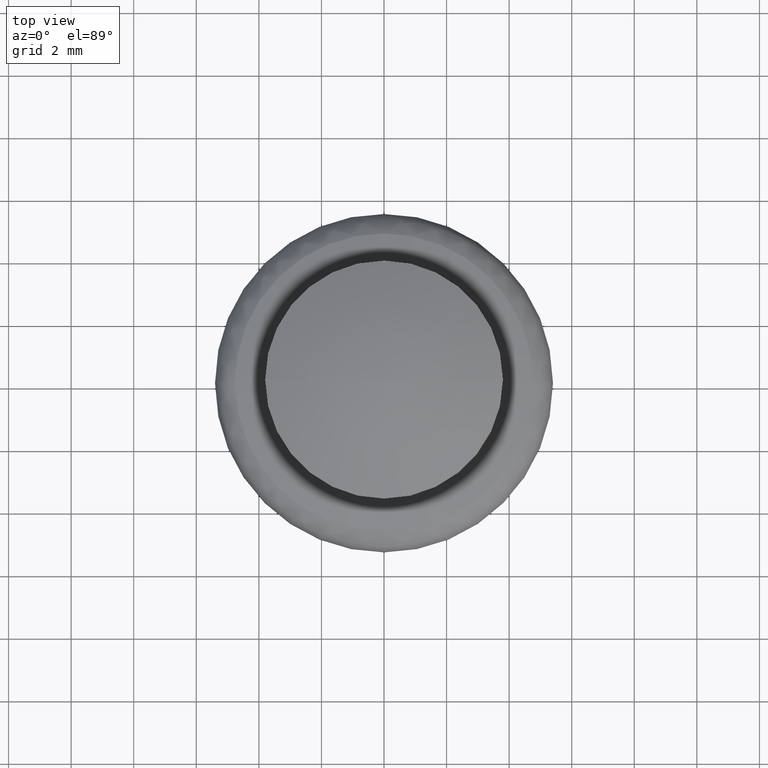
[diagram: clean part render]
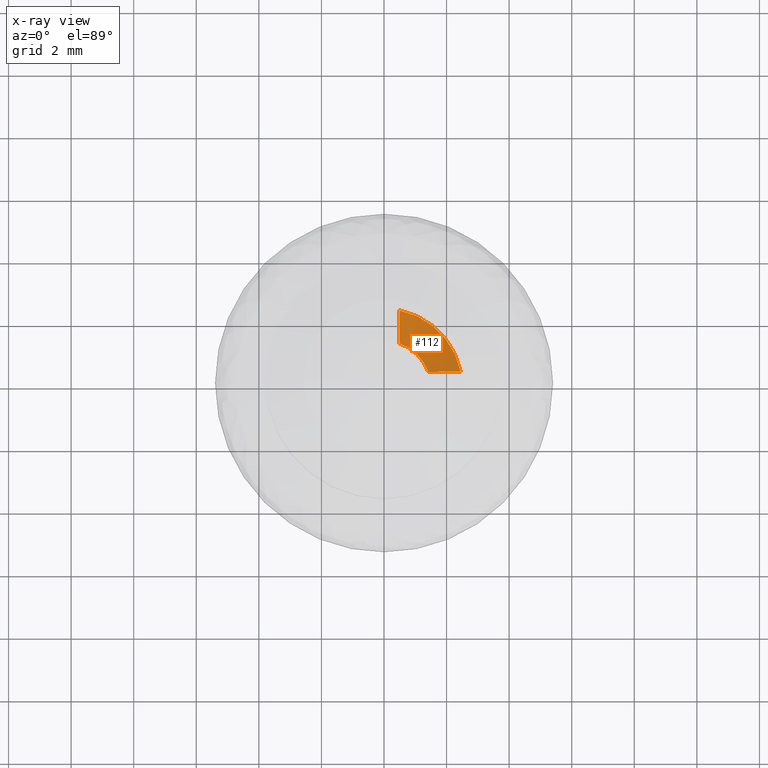
[diagram: x-ray — body ghosted, one internal face saturated and labeled with its STEP entity id]
A machine part, top view, then the same camera in x-ray: the body is ghosted and one INTERNAL B-rep face — a face not visible from any outside direction — is saturated and labeled: STEP entity #112.
In plain terms, the highlighted face is a freeform B-spline surface patch.
Its self-contained STEP definition (entity closure, byte-faithful):
#112=ADVANCED_FACE('',(#192),#191,.F.);
#191=( BOUNDED_SURFACE() B_SPLINE_SURFACE( 2,1,((#987,#988),(#989,#990),(#991,#992)), .UNSPECIFIED.,.F.,.F.,.F.) B_SPLINE_SURFACE_WITH_KNOTS((3,3),(2,2),(0.00000000000E+00,1.00000000000E+00),(0.00000000000E+00,1.00000000000E+00), .UNSPECIFIED. ) GEOMETRIC_REPRESENTATION_ITEM() RATIONAL_B_SPLINE_SURFACE(((1.00000000000E+00,1.00000000000E+00),(8.34046480557E-01,8.34046480557E-01),(1.00000000000E+00,1.00000000000E+00))) REPRESENTATION_ITEM('') SURFACE() );
#192=FACE_OUTER_BOUND('',#993,.T.);
#987=CARTESIAN_POINT('',(0.00000000000E+00,0.00000000000E+00,-1.14003633768E+01));
#988=CARTESIAN_POINT('',(3.39545307745E+00,6.91555707949E-01,-7.93520091329E+00));
#989=CARTESIAN_POINT('',(0.00000000000E+00,0.00000000000E+00,-1.14003633768E+01));
#990=CARTESIAN_POINT('',(2.93801183391E+00,2.93753569232E+00,-7.93520091329E+00));
#991=CARTESIAN_POINT('',(0.00000000000E+00,0.00000000000E+00,-1.14003633768E+01));
#992=CARTESIAN_POINT('',(6.92106019127E-01,3.39534094852E+00,-7.93520091329E+00));
#993=EDGE_LOOP('',(#1558,#1559,#1560,#1561));
#1558=ORIENTED_EDGE('',*,*,#1946,.F.);
#1559=ORIENTED_EDGE('',*,*,#1947,.F.);
#1560=ORIENTED_EDGE('',*,*,#1948,.F.);
#1561=ORIENTED_EDGE('',*,*,#1949,.F.);
#1946=EDGE_CURVE('',#2140,#2141,#2142,.T.);
#1947=EDGE_CURVE('',#2148,#2140,#2149,.T.);
#1948=EDGE_CURVE('',#2155,#2148,#2156,.T.);
#1949=EDGE_CURVE('',#2141,#2155,#2162,.T.);
#2140=VERTEX_POINT('',#3427);
#2141=VERTEX_POINT('',#3428);
#2142=CIRCLE('',#3432,2.50000000000E+00);
#2148=VERTEX_POINT('',#3433);
#2149=(BOUNDED_CURVE() B_SPLINE_CURVE(3,(#3434,#3435,#3436,#3437),.UNSPECIFIED.,.F.,.F.) B_SPLINE_CURVE_WITH_KNOTS((4,4),(7.11021556215E-04,2.15017625232E-03),.UNSPECIFIED.) CURVE() GEOMETRIC_REPRESENTATION_ITEM() RATIONAL_B_SPLINE_CURVE((1.00000000000E+00,1.00000000000E+00,1.00000000000E+00,1.00000000000E+00)) REPRESENTATION_ITEM('') );
#2155=VERTEX_POINT('',#3438);
#2156=CIRCLE('',#3442,1.50008149445E+00);
#2162=(BOUNDED_CURVE() B_SPLINE_CURVE(3,(#3443,#3444,#3445,#3446),.UNSPECIFIED.,.F.,.F.) B_SPLINE_CURVE_WITH_KNOTS((4,4),(6.51346346597E-04,2.09060161537E-03),.UNSPECIFIED.) CURVE() GEOMETRIC_REPRESENTATION_ITEM() RATIONAL_B_SPLINE_CURVE((1.00000000000E+00,1.00000000000E+00,1.00000000000E+00,1.00000000000E+00)) REPRESENTATION_ITEM('') );
#3427=CARTESIAN_POINT('',(5.00000000000E-01,2.44948974278E+00,-8.90036337678E+00));
#3428=CARTESIAN_POINT('',(2.44948974278E+00,5.00000000000E-01,-8.90036337678E+00));
#3429=CARTESIAN_POINT('',(0.00000000000E+00,0.00000000000E+00,-8.90036337678E+00));
#3430=DIRECTION('',(0.00000000000E+00,0.00000000000E+00,-1.00000000000E+00));
#3431=DIRECTION('',(1.00000000000E+00,-0.00000000000E+00,-0.00000000000E+00));
#3432=AXIS2_PLACEMENT_3D('',#3429,#3430,#3431);
#3433=CARTESIAN_POINT('',(5.00000000000E-01,1.41430000000E+00,-9.90028188233E+00));
#3434=CARTESIAN_POINT('',(5.00000000000E-01,1.41430000000E+00,-9.90028188233E+00));
#3435=CARTESIAN_POINT('',(5.00000000000E-01,1.76336938123E+00,-9.57117387874E+00));
#3436=CARTESIAN_POINT('',(5.00000000000E-01,2.10680815515E+00,-9.23612139036E+00));
#3437=CARTESIAN_POINT('',(5.00000000000E-01,2.44948974278E+00,-8.90036337678E+00));
#3438=CARTESIAN_POINT('',(1.41430000000E+00,5.00000000000E-01,-9.90028188233E+00));
#3439=CARTESIAN_POINT('',(0.00000000000E+00,0.00000000000E+00,-9.90028188233E+00));
#3440=DIRECTION('',(-0.00000000000E+00,0.00000000000E+00,1.00000000000E+00));
#3441=DIRECTION('',(-1.00000000000E+00,-0.00000000000E+00,-0.00000000000E+00));
#3442=AXIS2_PLACEMENT_3D('',#3439,#3440,#3441);
#3443=CARTESIAN_POINT('',(2.44948974278E+00,5.00000000000E-01,-8.90036337678E+00));
#3444=CARTESIAN_POINT('',(2.10680815515E+00,5.00000000000E-01,-9.23612139036E+00));
#3445=CARTESIAN_POINT('',(1.76336938123E+00,5.00000000000E-01,-9.57117387874E+00));
#3446=CARTESIAN_POINT('',(1.41430000000E+00,5.00000000000E-01,-9.90028188233E+00));